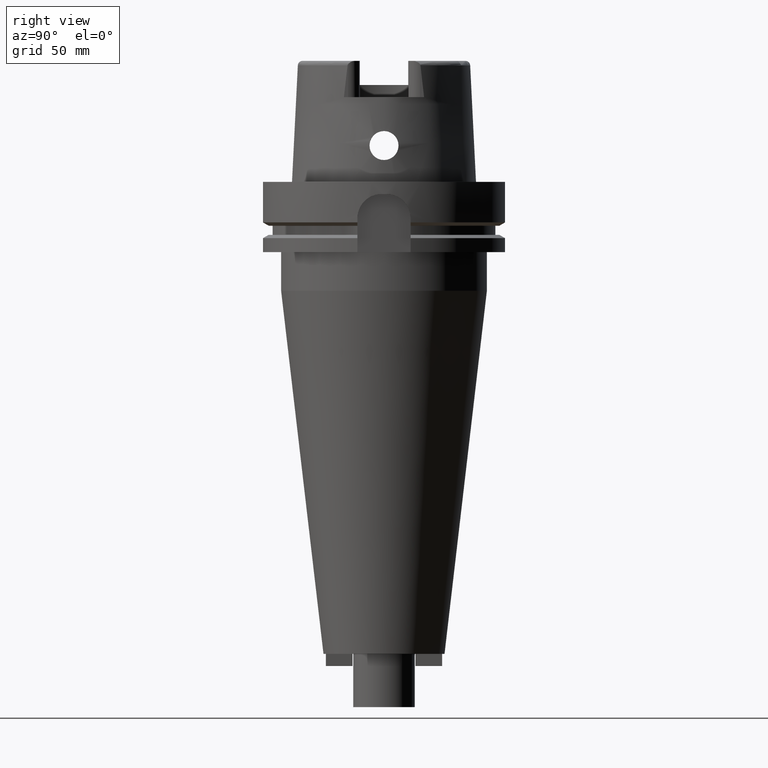
[diagram: clean part render]
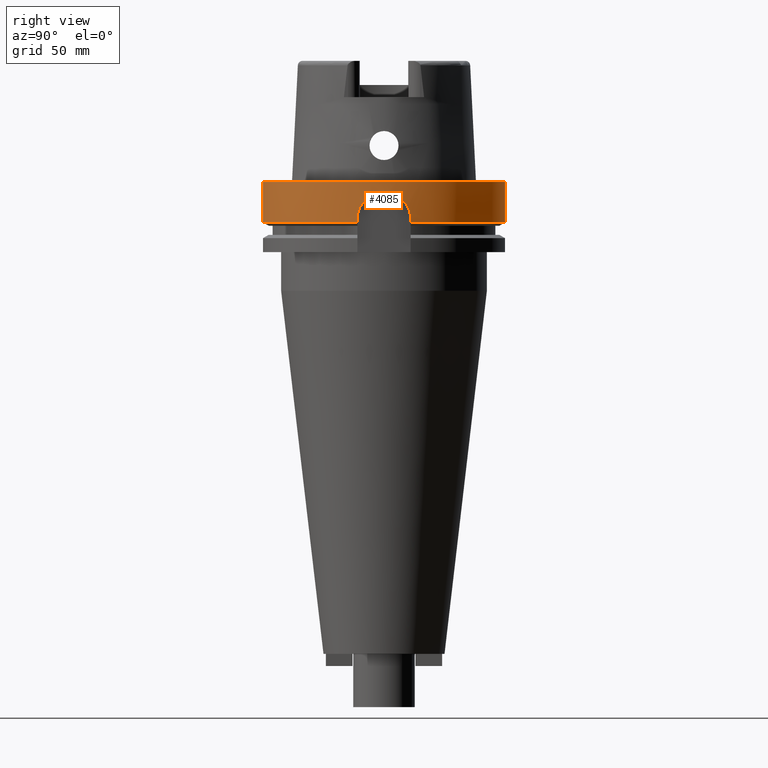
[diagram: same view with one face highlighted and labeled with its STEP entity id]
A machine part, right view. The second image highlights one B-rep face of the part: STEP entity #4085.
In plain terms, the highlighted cylindrical surface (partial cylindrical patch) has radius 50 mm, axis along (0, 0, 1).
Its self-contained STEP definition (entity closure, byte-faithful):
#1545=DIRECTION('',(0.E0,2.969006079282E-14,-1.E0));
#1546=VECTOR('',#1545,1.675240473581E1);
#1547=CARTESIAN_POINT('',(0.E0,-5.E1,-2.084258691563E-13));
#1548=LINE('',#1547,#1546);
#1597=CARTESIAN_POINT('',(4.877499359303E1,1.1E1,-1.675240473581E1));
#1602=CARTESIAN_POINT('',(0.E0,0.E0,-1.675240473581E1));
#1603=DIRECTION('',(0.E0,0.E0,1.E0));
#1604=DIRECTION('',(9.754998718606E-1,2.2E-1,0.E0));
#1605=AXIS2_PLACEMENT_3D('',#1602,#1603,#1604);
#1746=CARTESIAN_POINT('',(4.998999899980E1,-1.E0,-5.E0));
#1747=CARTESIAN_POINT('',(4.997503460282E1,-1.748070190215E0,-5.E0));
#1748=CARTESIAN_POINT('',(4.991285883829E1,-3.210048101434E0,
-5.162508306843E0));
#1749=CARTESIAN_POINT('',(4.972639841187E1,-5.358520384994E0,
-5.904792639453E0));
#1750=CARTESIAN_POINT('',(4.947876344009E1,-7.274062207240E0,
-7.105041065375E0));
#1751=CARTESIAN_POINT('',(4.921271411626E1,-8.876558450653E0,
-8.703010222588E0));
#1752=CARTESIAN_POINT('',(4.897599990577E1,-1.008359438902E1,
-1.061591949857E1));
#1753=CARTESIAN_POINT('',(4.881260139375E1,-1.083536034362E1,
-1.277572651516E1));
#1754=CARTESIAN_POINT('',(4.877499359303E1,-1.1E1,-1.424604735721E1));
#1755=CARTESIAN_POINT('',(4.877499359303E1,-1.1E1,-1.5E1));
#1760=DIRECTION('',(-5.027793947017E-13,6.690209687563E-14,-1.E0));
#1761=VECTOR('',#1760,1.752404735809E0);
#1762=CARTESIAN_POINT('',(4.877499359303E1,-1.1E1,-1.5E1));
#1763=LINE('',#1762,#1761);
#1767=DIRECTION('',(0.E0,-2.969006079282E-14,-1.E0));
#1768=VECTOR('',#1767,1.675240473581E1);
#1769=CARTESIAN_POINT('',(0.E0,5.E1,-2.084258691563E-13));
#1770=LINE('',#1769,#1768);
#1774=DIRECTION('',(4.946700496259E-13,7.095676941355E-14,1.E0));
#1775=VECTOR('',#1774,1.752404735809E0);
#1776=CARTESIAN_POINT('',(4.877499359303E1,1.1E1,-1.675240473581E1));
#1777=LINE('',#1776,#1775);
#1781=CARTESIAN_POINT('',(4.877499359303E1,1.1E1,-1.5E1));
#1782=CARTESIAN_POINT('',(4.877499359303E1,1.1E1,-1.425405366469E1));
#1783=CARTESIAN_POINT('',(4.881182119002E1,1.083873753341E1,-1.279702685513E1));
#1784=CARTESIAN_POINT('',(4.897268272064E1,1.009923672888E1,-1.065074173612E1));
#1785=CARTESIAN_POINT('',(4.920740341221E1,8.905300469164E0,-8.739736716398E0));
#1786=CARTESIAN_POINT('',(4.947305233912E1,7.312272479319E0,-7.135461040478E0));
#1787=CARTESIAN_POINT('',(4.972221230915E1,5.397924792651E0,-5.922868696535E0));
#1788=CARTESIAN_POINT('',(4.991139941789E1,3.236935530357E0,-5.167019104560E0));
#1789=CARTESIAN_POINT('',(4.997482707449E1,1.758444531009E0,-5.E0));
#1790=CARTESIAN_POINT('',(4.998999899980E1,1.E0,-5.E0));
#1795=CARTESIAN_POINT('',(0.E0,0.E0,-5.E0));
#1796=DIRECTION('',(0.E0,0.E0,1.E0));
#1797=DIRECTION('',(9.997999799960E-1,-2.E-2,0.E0));
#1798=AXIS2_PLACEMENT_3D('',#1795,#1796,#1797);
#1849=CARTESIAN_POINT('',(0.E0,0.E0,-1.675240473581E1));
#1850=DIRECTION('',(0.E0,0.E0,1.E0));
#1851=DIRECTION('',(0.E0,-1.E0,0.E0));
#1852=AXIS2_PLACEMENT_3D('',#1849,#1850,#1851);
#2003=CARTESIAN_POINT('',(0.E0,0.E0,-4.831690603169E-13));
#2004=DIRECTION('',(0.E0,0.E0,-1.E0));
#2005=DIRECTION('',(0.E0,1.E0,0.E0));
#2006=AXIS2_PLACEMENT_3D('',#2003,#2004,#2005);
#2709=CARTESIAN_POINT('',(0.E0,-5.E1,-1.675240473581E1));
#2710=VERTEX_POINT('',#2709);
#2711=CARTESIAN_POINT('',(4.877499359303E1,-1.1E1,-1.675240473581E1));
#2712=VERTEX_POINT('',#2711);
#2713=VERTEX_POINT('',#1597);
#2714=CARTESIAN_POINT('',(0.E0,5.E1,-1.675240473581E1));
#2715=VERTEX_POINT('',#2714);
#2717=CARTESIAN_POINT('',(0.E0,5.E1,-2.084258691563E-13));
#2718=VERTEX_POINT('',#2717);
#2719=CARTESIAN_POINT('',(0.E0,-5.E1,-4.831690603169E-13));
#2720=VERTEX_POINT('',#2719);
#2723=CARTESIAN_POINT('',(4.998999899980E1,-1.E0,-5.E0));
#2724=CARTESIAN_POINT('',(4.998999899980E1,1.E0,-5.E0));
#2725=VERTEX_POINT('',#2723);
#2726=VERTEX_POINT('',#2724);
#2727=VERTEX_POINT('',#1755);
#2728=CARTESIAN_POINT('',(4.877499359303E1,1.1E1,-1.5E1));
#2729=VERTEX_POINT('',#2728);
#4063=CARTESIAN_POINT('',(0.E0,0.E0,-2.3035E2));
#4064=DIRECTION('',(0.E0,0.E0,1.E0));
#4065=DIRECTION('',(0.E0,1.E0,0.E0));
#4066=AXIS2_PLACEMENT_3D('',#4063,#4064,#4065);
#4067=CYLINDRICAL_SURFACE('',#4066,5.E1);
#4069=ORIENTED_EDGE('',*,*,#4068,.F.);
#4071=ORIENTED_EDGE('',*,*,#4070,.T.);
#4072=ORIENTED_EDGE('',*,*,#3813,.T.);
#4074=ORIENTED_EDGE('',*,*,#4073,.F.);
#4075=ORIENTED_EDGE('',*,*,#3969,.F.);
#4077=ORIENTED_EDGE('',*,*,#4076,.F.);
#4078=ORIENTED_EDGE('',*,*,#3965,.T.);
#4079=ORIENTED_EDGE('',*,*,#3995,.F.);
#4080=ORIENTED_EDGE('',*,*,#3761,.T.);
#4082=ORIENTED_EDGE('',*,*,#4081,.T.);
#4083=EDGE_LOOP('',(#4069,#4071,#4072,#4074,#4075,#4077,#4078,#4079,#4080,
#4082));
#4084=FACE_OUTER_BOUND('',#4083,.F.);
#1606=CIRCLE('',#1605,5.E1);
#1756=B_SPLINE_CURVE_WITH_KNOTS('',3,(#1746,#1747,#1748,#1749,#1750,#1751,#1752,
#1753,#1754,#1755),.UNSPECIFIED.,.F.,.F.,(4,1,1,1,1,1,1,4),(0.E0,
1.428571428571E-1,2.857142857143E-1,4.285714285714E-1,5.714285714286E-1,
7.142857142857E-1,8.571428571429E-1,1.E0),.UNSPECIFIED.);
#1791=B_SPLINE_CURVE_WITH_KNOTS('',3,(#1781,#1782,#1783,#1784,#1785,#1786,#1787,
#1788,#1789,#1790),.UNSPECIFIED.,.F.,.F.,(4,1,1,1,1,1,1,4),(0.E0,
1.428571428571E-1,2.857142857143E-1,4.285714285714E-1,5.714285714286E-1,
7.142857142857E-1,8.571428571429E-1,1.E0),.UNSPECIFIED.);
#1799=CIRCLE('',#1798,5.E1);
#1853=CIRCLE('',#1852,5.E1);
#2007=CIRCLE('',#2006,5.E1);
#3761=EDGE_CURVE('',#2713,#2729,#1777,.T.);
#3813=EDGE_CURVE('',#2727,#2712,#1763,.T.);
#3965=EDGE_CURVE('',#2718,#2715,#1770,.T.);
#3969=EDGE_CURVE('',#2720,#2710,#1548,.T.);
#3995=EDGE_CURVE('',#2713,#2715,#1606,.T.);
#4068=EDGE_CURVE('',#2725,#2726,#1799,.T.);
#4070=EDGE_CURVE('',#2725,#2727,#1756,.T.);
#4073=EDGE_CURVE('',#2710,#2712,#1853,.T.);
#4076=EDGE_CURVE('',#2718,#2720,#2007,.T.);
#4081=EDGE_CURVE('',#2729,#2726,#1791,.T.);
#4085=ADVANCED_FACE('',(#4084),#4067,.T.);